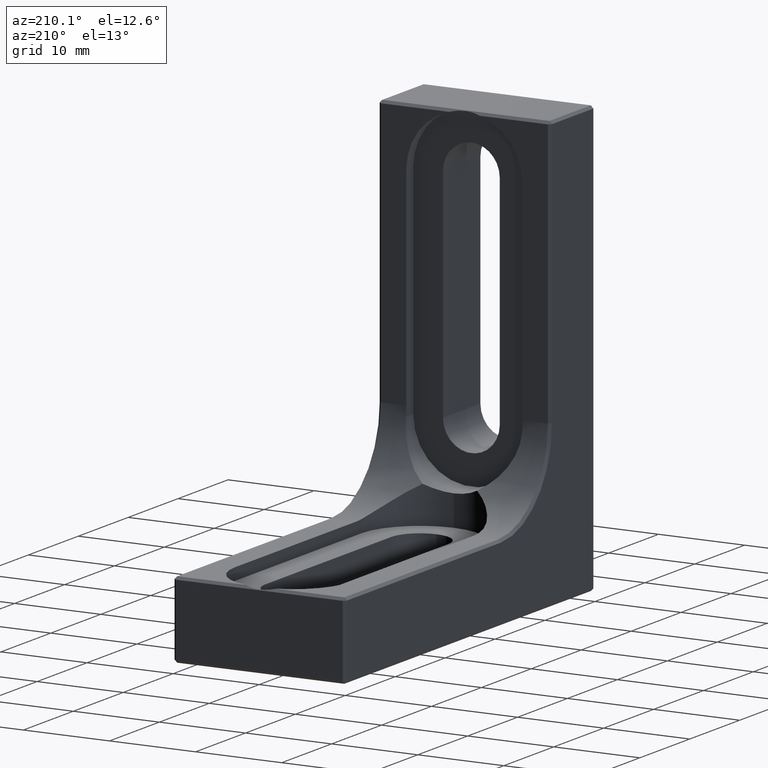
[diagram: clean part render]
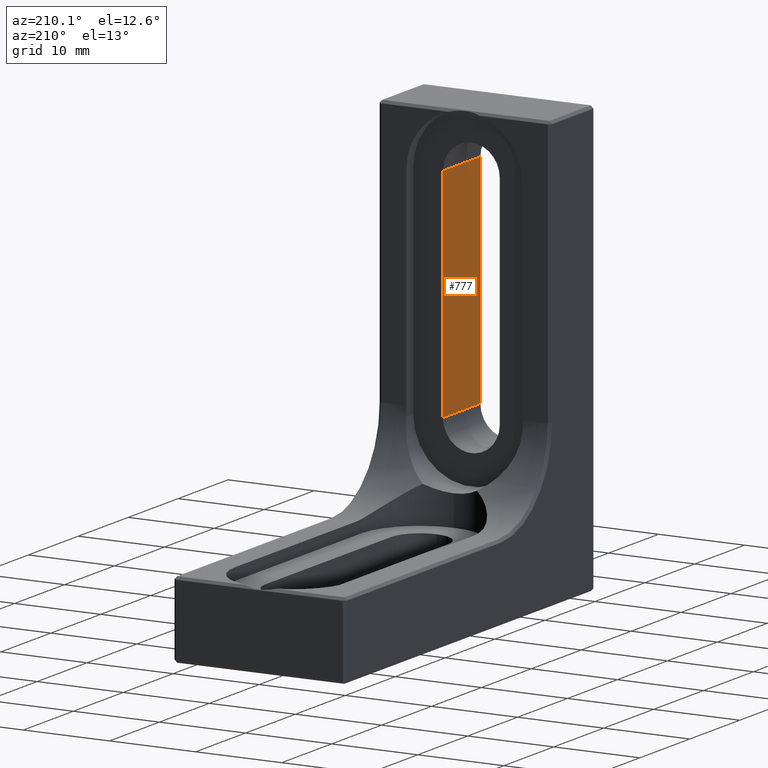
[diagram: same view with one face highlighted and labeled with its STEP entity id]
A machine part, auxiliary view. The second image highlights one B-rep face of the part: STEP entity #777.
In plain terms, the highlighted planar face has unit normal (1, 0, -0).
Its self-contained STEP definition (entity closure, byte-faithful):
#18 = DIRECTION ( 'NONE',  ( 1.195183497228115035E-16, -0.000000000000000000, 1.000000000000000000 ) ) ;
#83 = VERTEX_POINT ( 'NONE', #1388 ) ;
#100 = CARTESIAN_POINT ( 'NONE',  ( 3.299999999999999822, 7.500000000000000000, 17.78999999999999204 ) ) ;
#109 = DIRECTION ( 'NONE',  ( -0.000000000000000000, 1.000000000000000000, -0.000000000000000000 ) ) ;
#127 = DIRECTION ( 'NONE',  ( 1.000000000000000000, 0.000000000000000000, -1.195183497228115035E-16 ) ) ;
#141 = CARTESIAN_POINT ( 'NONE',  ( 3.300000000000002931, -6.938893903907228378E-15, 43.18999999999999062 ) ) ;
#145 = ORIENTED_EDGE ( 'NONE', *, *, #861, .F. ) ;
#252 = ORIENTED_EDGE ( 'NONE', *, *, #1147, .F. ) ;
#267 = VERTEX_POINT ( 'NONE', #1704 ) ;
#293 = VECTOR ( 'NONE', #541, 1000.000000000000000 ) ;
#396 = CARTESIAN_POINT ( 'NONE',  ( 3.299999999999999822, -6.938893903907228378E-15, 17.78999999999999204 ) ) ;
#414 = CARTESIAN_POINT ( 'NONE',  ( 3.299999999999999822, -6.938893903907228378E-15, 17.78999999999999204 ) ) ;
#452 = VECTOR ( 'NONE', #18, 1000.000000000000000 ) ;
#521 = CARTESIAN_POINT ( 'NONE',  ( 3.299999999999999822, -6.938893903907228378E-15, 17.78999999999999204 ) ) ;
#541 = DIRECTION ( 'NONE',  ( -1.195183497228115035E-16, -0.000000000000000000, -1.000000000000000000 ) ) ;
#553 = DIRECTION ( 'NONE',  ( -1.195183497228115035E-16, 0.000000000000000000, -1.000000000000000000 ) ) ;
#608 = VECTOR ( 'NONE', #882, 1000.000000000000000 ) ;
#715 = VERTEX_POINT ( 'NONE', #521 ) ;
#759 = EDGE_CURVE ( 'NONE', #267, #715, #828, .T. ) ;
#777 = ADVANCED_FACE ( 'NONE', ( #1740 ), #1867, .F. ) ;
#828 = LINE ( 'NONE', #1437, #293 ) ;
#855 = LINE ( 'NONE', #414, #608 ) ;
#861 = EDGE_CURVE ( 'NONE', #1019, #83, #1901, .T. ) ;
#882 = DIRECTION ( 'NONE',  ( -0.000000000000000000, 1.000000000000000000, -0.000000000000000000 ) ) ;
#886 = VECTOR ( 'NONE', #109, 1000.000000000000000 ) ;
#1019 = VERTEX_POINT ( 'NONE', #100 ) ;
#1147 = EDGE_CURVE ( 'NONE', #715, #1019, #855, .T. ) ;
#1175 = ORIENTED_EDGE ( 'NONE', *, *, #1524, .T. ) ;
#1184 = CARTESIAN_POINT ( 'NONE',  ( 3.299999999999999822, 7.500000000000000000, 17.78999999999999204 ) ) ;
#1270 = EDGE_LOOP ( 'NONE', ( #145, #252, #1513, #1175 ) ) ;
#1388 = CARTESIAN_POINT ( 'NONE',  ( 3.300000000000002931, 7.500000000000000000, 43.18999999999999062 ) ) ;
#1437 = CARTESIAN_POINT ( 'NONE',  ( 3.299999999999999822, -6.938893903907228378E-15, 17.78999999999999204 ) ) ;
#1513 = ORIENTED_EDGE ( 'NONE', *, *, #759, .F. ) ;
#1524 = EDGE_CURVE ( 'NONE', #267, #83, #1754, .T. ) ;
#1616 = AXIS2_PLACEMENT_3D ( 'NONE', #396, #127, #553 ) ;
#1704 = CARTESIAN_POINT ( 'NONE',  ( 3.300000000000002931, -6.938893903907228378E-15, 43.18999999999999062 ) ) ;
#1740 = FACE_OUTER_BOUND ( 'NONE', #1270, .T. ) ;
#1754 = LINE ( 'NONE', #141, #886 ) ;
#1867 = PLANE ( 'NONE',  #1616 ) ;
#1901 = LINE ( 'NONE', #1184, #452 ) ;